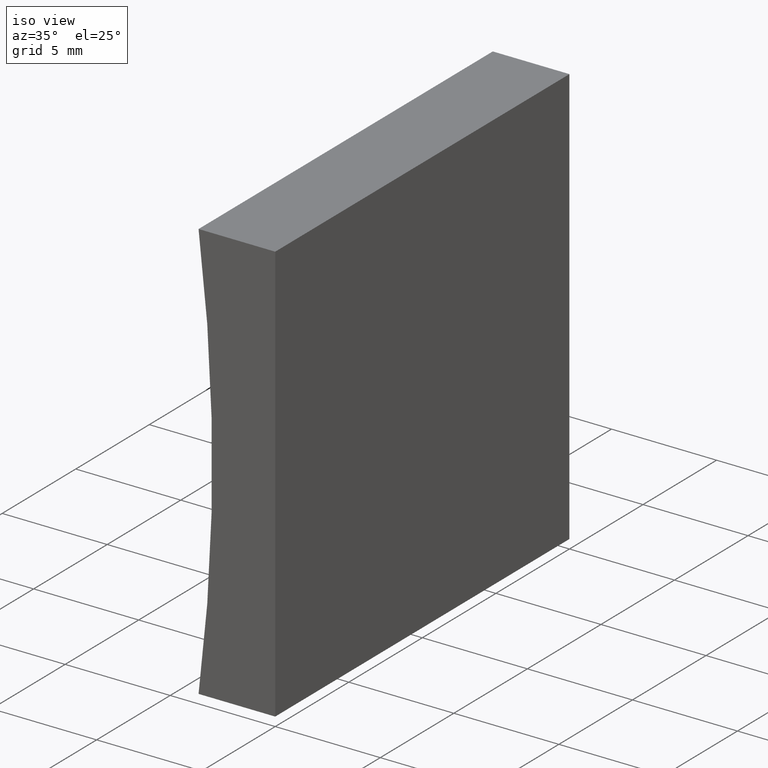
[diagram: clean part render]
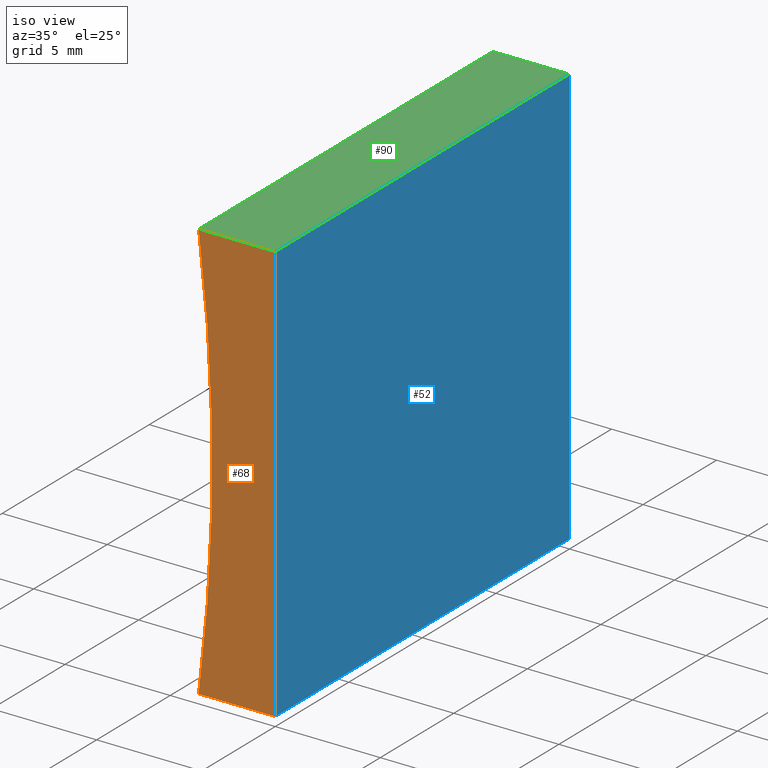
[diagram: same view with three faces highlighted in distinct colors, each labeled with its STEP entity id]
A machine part, iso view with three faces highlighted in distinct colors.
Their STEP definitions:

[orange] entity #68 — the highlighted planar face has unit normal (0, 1, 0).
#3 = ORIENTED_EDGE ( 'NONE', *, *, #110, .F. ) ;
#4 = PLANE ( 'NONE',  #162 ) ;
#12 = CARTESIAN_POINT ( 'NONE',  ( 0.0000000000000000000, 0.0000000000000000000, 0.0000000000000000000 ) ) ;
#13 = CARTESIAN_POINT ( 'NONE',  ( 1.224646799147353300E-015, 0.0000000000000000000, 20.00000000000000000 ) ) ;
#14 = LINE ( 'NONE', #31, #55 ) ;
#21 = DIRECTION ( 'NONE',  ( 0.0000000000000000000, 1.000000000000000000, 0.0000000000000000000 ) ) ;
#25 = DIRECTION ( 'NONE',  ( -0.0000000000000000000, -1.000000000000000000, -0.0000000000000000000 ) ) ;
#29 = VECTOR ( 'NONE', #44, 1000.000000000000000 ) ;
#31 = CARTESIAN_POINT ( 'NONE',  ( 1.224646799147353300E-015, 0.0000000000000000000, 20.00000000000000000 ) ) ;
#33 = EDGE_CURVE ( 'NONE', #164, #81, #96, .T. ) ;
#37 = LINE ( 'NONE', #12, #29 ) ;
#43 = AXIS2_PLACEMENT_3D ( 'NONE', #54, #25, #107 ) ;
#44 = DIRECTION ( 'NONE',  ( -1.000000000000000000, 0.0000000000000000000, -9.511984616419059400E-016 ) ) ;
#51 = EDGE_LOOP ( 'NONE', ( #192, #3, #196, #180 ) ) ;
#54 = CARTESIAN_POINT ( 'NONE',  ( -80.54999999999999700, 0.0000000000000000000, 10.00000000000000900 ) ) ;
#55 = VECTOR ( 'NONE', #153, 1000.000000000000000 ) ;
#58 = LINE ( 'NONE', #174, #80 ) ;
#68 = ADVANCED_FACE ( 'NONE', ( #95 ), #4, .F. ) ;
#80 = VECTOR ( 'NONE', #106, 1000.000000000000000 ) ;
#81 = VERTEX_POINT ( 'NONE', #159 ) ;
#89 = DIRECTION ( 'NONE',  ( 0.0000000000000000000, -0.0000000000000000000, 1.000000000000000000 ) ) ;
#95 = FACE_OUTER_BOUND ( 'NONE', #51, .T. ) ;
#96 = CIRCLE ( 'NONE', #43, 77.55000000000001100 ) ;
#102 = CARTESIAN_POINT ( 'NONE',  ( -80.54999999999999700, 0.0000000000000000000, 10.00000000000000900 ) ) ;
#106 = DIRECTION ( 'NONE',  ( -6.123233995736766000E-017, -0.0000000000000000000, -1.000000000000000000 ) ) ;
#107 = DIRECTION ( 'NONE',  ( 0.0000000000000000000, 0.0000000000000000000, 1.000000000000000000 ) ) ;
#110 = EDGE_CURVE ( 'NONE', #203, #129, #58, .T. ) ;
#114 = EDGE_CURVE ( 'NONE', #81, #203, #14, .T. ) ;
#119 = EDGE_CURVE ( 'NONE', #129, #164, #37, .T. ) ;
#129 = VERTEX_POINT ( 'NONE', #144 ) ;
#144 = CARTESIAN_POINT ( 'NONE',  ( 0.0000000000000000000, 0.0000000000000000000, 0.0000000000000000000 ) ) ;
#153 = DIRECTION ( 'NONE',  ( 1.000000000000000000, -0.0000000000000000000, -9.511984616419061300E-016 ) ) ;
#159 = CARTESIAN_POINT ( 'NONE',  ( -3.647448026739704500, 0.0000000000000000000, 20.00000000000000400 ) ) ;
#162 = AXIS2_PLACEMENT_3D ( 'NONE', #102, #21, #89 ) ;
#164 = VERTEX_POINT ( 'NONE', #170 ) ;
#170 = CARTESIAN_POINT ( 'NONE',  ( -3.647448026739705400, 0.0000000000000000000, -3.469446951953614200E-015 ) ) ;
#174 = CARTESIAN_POINT ( 'NONE',  ( 0.0000000000000000000, 0.0000000000000000000, 0.0000000000000000000 ) ) ;
#180 = ORIENTED_EDGE ( 'NONE', *, *, #33, .F. ) ;
#192 = ORIENTED_EDGE ( 'NONE', *, *, #119, .F. ) ;
#196 = ORIENTED_EDGE ( 'NONE', *, *, #114, .F. ) ;
#203 = VERTEX_POINT ( 'NONE', #13 ) ;

[blue] entity #52 — the highlighted planar face has unit normal (-1, 0, 0).
#1 = FACE_OUTER_BOUND ( 'NONE', #133, .T. ) ;
#10 = CARTESIAN_POINT ( 'NONE',  ( 0.0000000000000000000, 20.00000000000000000, 0.0000000000000000000 ) ) ;
#13 = CARTESIAN_POINT ( 'NONE',  ( 1.224646799147353300E-015, 0.0000000000000000000, 20.00000000000000000 ) ) ;
#17 = LINE ( 'NONE', #115, #22 ) ;
#19 = VERTEX_POINT ( 'NONE', #65 ) ;
#22 = VECTOR ( 'NONE', #195, 1000.000000000000000 ) ;
#24 = CARTESIAN_POINT ( 'NONE',  ( 0.0000000000000000000, 20.00000000000000000, 0.0000000000000000000 ) ) ;
#26 = LINE ( 'NONE', #130, #191 ) ;
#52 = ADVANCED_FACE ( 'NONE', ( #1 ), #93, .F. ) ;
#58 = LINE ( 'NONE', #174, #80 ) ;
#59 = VECTOR ( 'NONE', #76, 1000.000000000000000 ) ;
#60 = ORIENTED_EDGE ( 'NONE', *, *, #136, .F. ) ;
#65 = CARTESIAN_POINT ( 'NONE',  ( 0.0000000000000000000, 20.00000000000000000, 0.0000000000000000000 ) ) ;
#66 = AXIS2_PLACEMENT_3D ( 'NONE', #24, #140, #190 ) ;
#69 = ORIENTED_EDGE ( 'NONE', *, *, #157, .T. ) ;
#76 = DIRECTION ( 'NONE',  ( -6.123233995736766000E-017, -0.0000000000000000000, -1.000000000000000000 ) ) ;
#80 = VECTOR ( 'NONE', #106, 1000.000000000000000 ) ;
#93 = PLANE ( 'NONE',  #66 ) ;
#106 = DIRECTION ( 'NONE',  ( -6.123233995736766000E-017, -0.0000000000000000000, -1.000000000000000000 ) ) ;
#110 = EDGE_CURVE ( 'NONE', #203, #129, #58, .T. ) ;
#115 = CARTESIAN_POINT ( 'NONE',  ( 1.224646799147353300E-015, 20.00000000000000000, 20.00000000000000000 ) ) ;
#129 = VERTEX_POINT ( 'NONE', #144 ) ;
#130 = CARTESIAN_POINT ( 'NONE',  ( 0.0000000000000000000, 20.00000000000000000, 0.0000000000000000000 ) ) ;
#133 = EDGE_LOOP ( 'NONE', ( #200, #60, #202, #69 ) ) ;
#136 = EDGE_CURVE ( 'NONE', #19, #129, #26, .T. ) ;
#140 = DIRECTION ( 'NONE',  ( -1.000000000000000000, 0.0000000000000000000, 6.123233995736766000E-017 ) ) ;
#144 = CARTESIAN_POINT ( 'NONE',  ( 0.0000000000000000000, 0.0000000000000000000, 0.0000000000000000000 ) ) ;
#145 = CARTESIAN_POINT ( 'NONE',  ( 1.224646799147353300E-015, 20.00000000000000000, 20.00000000000000000 ) ) ;
#157 = EDGE_CURVE ( 'NONE', #178, #203, #17, .T. ) ;
#158 = DIRECTION ( 'NONE',  ( -0.0000000000000000000, -1.000000000000000000, -0.0000000000000000000 ) ) ;
#174 = CARTESIAN_POINT ( 'NONE',  ( 0.0000000000000000000, 0.0000000000000000000, 0.0000000000000000000 ) ) ;
#178 = VERTEX_POINT ( 'NONE', #145 ) ;
#185 = EDGE_CURVE ( 'NONE', #178, #19, #204, .T. ) ;
#190 = DIRECTION ( 'NONE',  ( 6.123233995736766000E-017, 0.0000000000000000000, 1.000000000000000000 ) ) ;
#191 = VECTOR ( 'NONE', #158, 1000.000000000000000 ) ;
#195 = DIRECTION ( 'NONE',  ( -0.0000000000000000000, -1.000000000000000000, -0.0000000000000000000 ) ) ;
#200 = ORIENTED_EDGE ( 'NONE', *, *, #110, .T. ) ;
#202 = ORIENTED_EDGE ( 'NONE', *, *, #185, .F. ) ;
#203 = VERTEX_POINT ( 'NONE', #13 ) ;
#204 = LINE ( 'NONE', #10, #59 ) ;

[green] entity #90 — the highlighted planar face has unit normal (-0, 0, -1).
#5 = EDGE_LOOP ( 'NONE', ( #108, #121, #138, #30 ) ) ;
#13 = CARTESIAN_POINT ( 'NONE',  ( 1.224646799147353300E-015, 0.0000000000000000000, 20.00000000000000000 ) ) ;
#14 = LINE ( 'NONE', #31, #55 ) ;
#16 = FACE_OUTER_BOUND ( 'NONE', #5, .T. ) ;
#17 = LINE ( 'NONE', #115, #22 ) ;
#18 = PLANE ( 'NONE',  #149 ) ;
#22 = VECTOR ( 'NONE', #195, 1000.000000000000000 ) ;
#27 = DIRECTION ( 'NONE',  ( -0.0000000000000000000, -1.000000000000000000, -0.0000000000000000000 ) ) ;
#28 = DIRECTION ( 'NONE',  ( -1.000000000000000000, 0.0000000000000000000, 9.511984616419061300E-016 ) ) ;
#30 = ORIENTED_EDGE ( 'NONE', *, *, #137, .T. ) ;
#31 = CARTESIAN_POINT ( 'NONE',  ( 1.224646799147353300E-015, 0.0000000000000000000, 20.00000000000000000 ) ) ;
#34 = VECTOR ( 'NONE', #27, 1000.000000000000000 ) ;
#49 = CARTESIAN_POINT ( 'NONE',  ( 1.224646799147353300E-015, 20.00000000000000000, 20.00000000000000000 ) ) ;
#55 = VECTOR ( 'NONE', #153, 1000.000000000000000 ) ;
#57 = CARTESIAN_POINT ( 'NONE',  ( -3.647448026739704500, 20.00000000000000000, 20.00000000000000400 ) ) ;
#67 = VERTEX_POINT ( 'NONE', #86 ) ;
#70 = EDGE_CURVE ( 'NONE', #67, #178, #83, .T. ) ;
#81 = VERTEX_POINT ( 'NONE', #159 ) ;
#83 = LINE ( 'NONE', #49, #92 ) ;
#86 = CARTESIAN_POINT ( 'NONE',  ( -3.647448026739704500, 20.00000000000000000, 20.00000000000000400 ) ) ;
#88 = LINE ( 'NONE', #57, #34 ) ;
#90 = ADVANCED_FACE ( 'NONE', ( #16 ), #18, .F. ) ;
#92 = VECTOR ( 'NONE', #109, 1000.000000000000000 ) ;
#108 = ORIENTED_EDGE ( 'NONE', *, *, #114, .T. ) ;
#109 = DIRECTION ( 'NONE',  ( 1.000000000000000000, -0.0000000000000000000, -9.511984616419061300E-016 ) ) ;
#114 = EDGE_CURVE ( 'NONE', #81, #203, #14, .T. ) ;
#115 = CARTESIAN_POINT ( 'NONE',  ( 1.224646799147353300E-015, 20.00000000000000000, 20.00000000000000000 ) ) ;
#121 = ORIENTED_EDGE ( 'NONE', *, *, #157, .F. ) ;
#137 = EDGE_CURVE ( 'NONE', #67, #81, #88, .T. ) ;
#138 = ORIENTED_EDGE ( 'NONE', *, *, #70, .F. ) ;
#145 = CARTESIAN_POINT ( 'NONE',  ( 1.224646799147353300E-015, 20.00000000000000000, 20.00000000000000000 ) ) ;
#149 = AXIS2_PLACEMENT_3D ( 'NONE', #175, #201, #28 ) ;
#153 = DIRECTION ( 'NONE',  ( 1.000000000000000000, -0.0000000000000000000, -9.511984616419061300E-016 ) ) ;
#157 = EDGE_CURVE ( 'NONE', #178, #203, #17, .T. ) ;
#159 = CARTESIAN_POINT ( 'NONE',  ( -3.647448026739704500, 0.0000000000000000000, 20.00000000000000400 ) ) ;
#175 = CARTESIAN_POINT ( 'NONE',  ( 1.224646799147353300E-015, 20.00000000000000000, 20.00000000000000000 ) ) ;
#178 = VERTEX_POINT ( 'NONE', #145 ) ;
#195 = DIRECTION ( 'NONE',  ( -0.0000000000000000000, -1.000000000000000000, -0.0000000000000000000 ) ) ;
#201 = DIRECTION ( 'NONE',  ( -9.511984616419061300E-016, 0.0000000000000000000, -1.000000000000000000 ) ) ;
#203 = VERTEX_POINT ( 'NONE', #13 ) ;